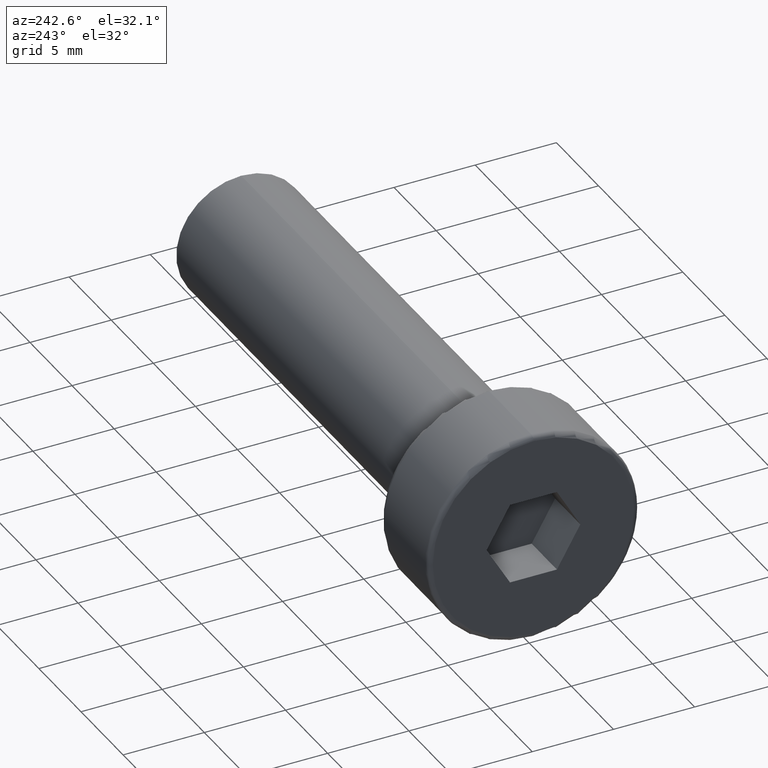
[diagram: clean part render]
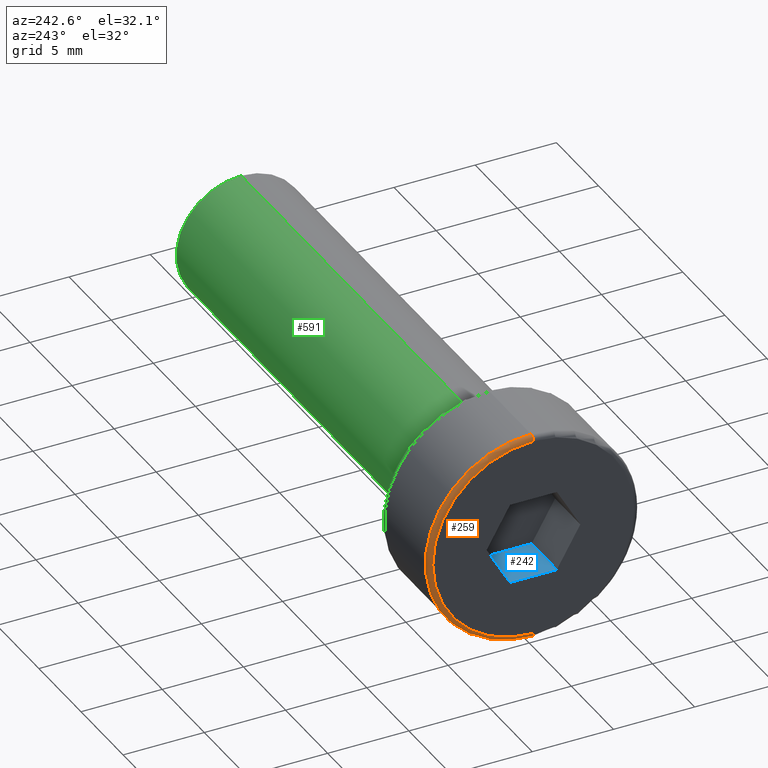
[diagram: same view with three faces highlighted in distinct colors, each labeled with its STEP entity id]
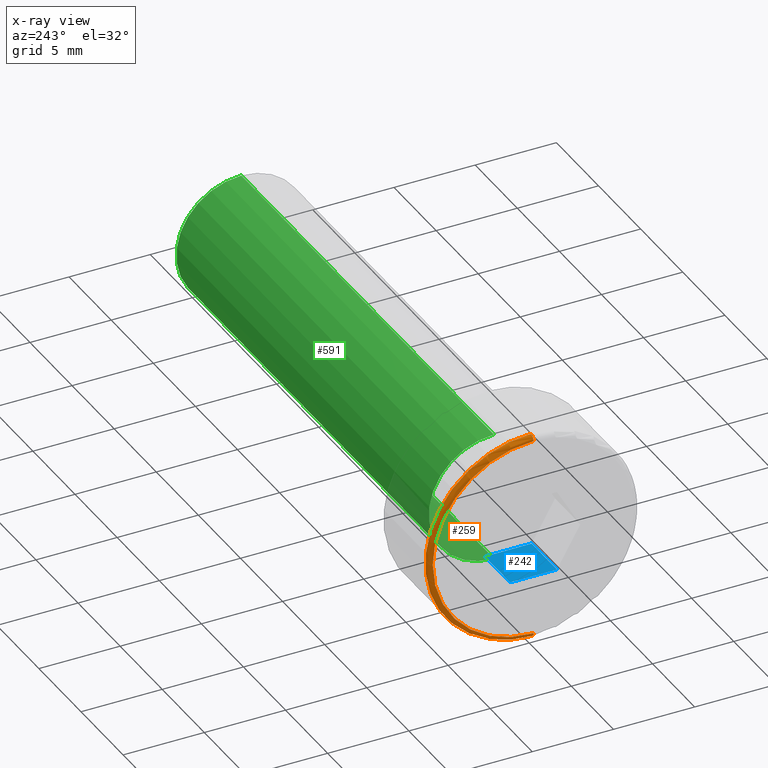
[diagram: x-ray of the same camera — body ghosted, the three highlighted faces saturated]
A machine part, auxiliary view with three faces highlighted in distinct colors.
The next image is the same camera in x-ray (body ghosted, the three faces saturated) — at least one of them is partly hidden behind the body in this view.
Their STEP definitions:

[orange] entity #259 — the highlighted toroidal blend (fillet) surface has major radius 6.2 mm and minor (blend) radius 0.3 mm.
#21 = CIRCLE ( 'NONE', #448, 0.2999999999999999300 ) ;
#34 = CIRCLE ( 'NONE', #432, 6.499999999999999100 ) ;
#40 = VERTEX_POINT ( 'NONE', #231 ) ;
#44 = AXIS2_PLACEMENT_3D ( 'NONE', #458, #88, #518 ) ;
#64 = CIRCLE ( 'NONE', #521, 0.2999999999999999300 ) ;
#85 = DIRECTION ( 'NONE',  ( 0.0000000000000000000, 1.000000000000000000, -1.224646799147353200E-016 ) ) ;
#87 = CIRCLE ( 'NONE', #44, 6.199999999999999300 ) ;
#88 = DIRECTION ( 'NONE',  ( -1.000000000000000000, -0.0000000000000000000, -0.0000000000000000000 ) ) ;
#97 = VERTEX_POINT ( 'NONE', #227 ) ;
#150 = EDGE_CURVE ( 'NONE', #97, #40, #64, .T. ) ;
#220 = EDGE_CURVE ( 'NONE', #97, #243, #87, .T. ) ;
#225 = DIRECTION ( 'NONE',  ( 1.000000000000000000, 0.0000000000000000000, 0.0000000000000000000 ) ) ;
#227 = CARTESIAN_POINT ( 'NONE',  ( -5.500000000000000000, 7.776507174585691200E-016, 6.199999999999999300 ) ) ;
#231 = CARTESIAN_POINT ( 'NONE',  ( -5.200000000000000200, 7.960204194457794500E-016, 6.499999999999999100 ) ) ;
#243 = VERTEX_POINT ( 'NONE', #639 ) ;
#259 = ADVANCED_FACE ( 'NONE', ( #435 ), #745, .T. ) ;
#267 = CARTESIAN_POINT ( 'NONE',  ( -5.200000000000000200, 0.0000000000000000000, 0.0000000000000000000 ) ) ;
#315 = ORIENTED_EDGE ( 'NONE', *, *, #220, .F. ) ;
#357 = DIRECTION ( 'NONE',  ( 0.0000000000000000000, 0.0000000000000000000, -1.000000000000000000 ) ) ;
#414 = ORIENTED_EDGE ( 'NONE', *, *, #558, .F. ) ;
#431 = ORIENTED_EDGE ( 'NONE', *, *, #150, .T. ) ;
#432 = AXIS2_PLACEMENT_3D ( 'NONE', #267, #522, #516 ) ;
#435 = FACE_OUTER_BOUND ( 'NONE', #482, .T. ) ;
#448 = AXIS2_PLACEMENT_3D ( 'NONE', #742, #563, #357 ) ;
#454 = DIRECTION ( 'NONE',  ( 0.0000000000000000000, 1.224646799147353200E-016, 1.000000000000000000 ) ) ;
#458 = CARTESIAN_POINT ( 'NONE',  ( -5.500000000000000000, 0.0000000000000000000, 0.0000000000000000000 ) ) ;
#482 = EDGE_LOOP ( 'NONE', ( #315, #431, #705, #414 ) ) ;
#504 = AXIS2_PLACEMENT_3D ( 'NONE', #582, #225, #661 ) ;
#514 = CARTESIAN_POINT ( 'NONE',  ( -5.200000000000000200, 7.592810154713588800E-016, 6.199999999999999300 ) ) ;
#516 = DIRECTION ( 'NONE',  ( 0.0000000000000000000, 0.0000000000000000000, -1.000000000000000000 ) ) ;
#518 = DIRECTION ( 'NONE',  ( 0.0000000000000000000, 0.0000000000000000000, -1.000000000000000000 ) ) ;
#521 = AXIS2_PLACEMENT_3D ( 'NONE', #514, #85, #454 ) ;
#522 = DIRECTION ( 'NONE',  ( 1.000000000000000000, 0.0000000000000000000, 0.0000000000000000000 ) ) ;
#558 = EDGE_CURVE ( 'NONE', #243, #709, #21, .T. ) ;
#563 = DIRECTION ( 'NONE',  ( 0.0000000000000000000, -1.000000000000000000, 0.0000000000000000000 ) ) ;
#582 = CARTESIAN_POINT ( 'NONE',  ( -5.200000000000000200, 0.0000000000000000000, 0.0000000000000000000 ) ) ;
#639 = CARTESIAN_POINT ( 'NONE',  ( -5.500000000000000000, 0.0000000000000000000, -6.199999999999999300 ) ) ;
#661 = DIRECTION ( 'NONE',  ( 0.0000000000000000000, 0.0000000000000000000, -1.000000000000000000 ) ) ;
#681 = CARTESIAN_POINT ( 'NONE',  ( -5.200000000000000200, 0.0000000000000000000, -6.499999999999999100 ) ) ;
#705 = ORIENTED_EDGE ( 'NONE', *, *, #759, .F. ) ;
#709 = VERTEX_POINT ( 'NONE', #681 ) ;
#742 = CARTESIAN_POINT ( 'NONE',  ( -5.200000000000000200, 0.0000000000000000000, -6.199999999999999300 ) ) ;
#745 = TOROIDAL_SURFACE ( 'NONE', #504, 6.199999999999999300, 0.2999999999999999900 ) ;
#759 = EDGE_CURVE ( 'NONE', #709, #40, #34, .T. ) ;

[blue] entity #242 — the highlighted planar face has unit normal (0, 0, -1).
#6 = LINE ( 'NONE', #757, #656 ) ;
#10 = DIRECTION ( 'NONE',  ( 0.0000000000000000000, 0.0000000000000000000, -1.000000000000000000 ) ) ;
#13 = DIRECTION ( 'NONE',  ( -1.000000000000000000, -0.0000000000000000000, -0.0000000000000000000 ) ) ;
#62 = FACE_OUTER_BOUND ( 'NONE', #778, .T. ) ;
#91 = VERTEX_POINT ( 'NONE', #413 ) ;
#152 = LINE ( 'NONE', #725, #461 ) ;
#242 = ADVANCED_FACE ( 'NONE', ( #62 ), #398, .F. ) ;
#292 = AXIS2_PLACEMENT_3D ( 'NONE', #330, #10, #460 ) ;
#299 = ORIENTED_EDGE ( 'NONE', *, *, #405, .F. ) ;
#300 = CARTESIAN_POINT ( 'NONE',  ( -5.500000000000000000, -1.443375672974072800, -2.500000000000013300 ) ) ;
#308 = EDGE_CURVE ( 'NONE', #733, #535, #517, .T. ) ;
#330 = CARTESIAN_POINT ( 'NONE',  ( -2.499999999999999600, -1.443375672974072800, -2.500000000000013300 ) ) ;
#331 = CARTESIAN_POINT ( 'NONE',  ( -5.500000000000000000, 1.443375672974072300, -2.500000000000013300 ) ) ;
#349 = VECTOR ( 'NONE', #540, 1000.000000000000000 ) ;
#350 = EDGE_CURVE ( 'NONE', #91, #750, #806, .T. ) ;
#369 = ORIENTED_EDGE ( 'NONE', *, *, #308, .T. ) ;
#398 = PLANE ( 'NONE',  #292 ) ;
#405 = EDGE_CURVE ( 'NONE', #750, #535, #152, .T. ) ;
#413 = CARTESIAN_POINT ( 'NONE',  ( -2.499999999999999600, 1.443375672974072300, -2.500000000000013300 ) ) ;
#460 = DIRECTION ( 'NONE',  ( -1.000000000000000000, 0.0000000000000000000, -0.0000000000000000000 ) ) ;
#461 = VECTOR ( 'NONE', #675, 1000.000000000000000 ) ;
#473 = ORIENTED_EDGE ( 'NONE', *, *, #782, .T. ) ;
#487 = DIRECTION ( 'NONE',  ( -0.0000000000000000000, -1.000000000000000000, -0.0000000000000000000 ) ) ;
#517 = LINE ( 'NONE', #595, #349 ) ;
#526 = ORIENTED_EDGE ( 'NONE', *, *, #350, .F. ) ;
#535 = VERTEX_POINT ( 'NONE', #300 ) ;
#540 = DIRECTION ( 'NONE',  ( -0.0000000000000000000, -1.000000000000000000, -0.0000000000000000000 ) ) ;
#556 = CARTESIAN_POINT ( 'NONE',  ( -2.499999999999999600, -1.443375672974072800, -2.500000000000013300 ) ) ;
#595 = CARTESIAN_POINT ( 'NONE',  ( -5.500000000000000000, -1.443375672974072800, -2.500000000000013300 ) ) ;
#607 = CARTESIAN_POINT ( 'NONE',  ( -2.499999999999999600, -1.443375672974072800, -2.500000000000013300 ) ) ;
#640 = VECTOR ( 'NONE', #487, 1000.000000000000000 ) ;
#656 = VECTOR ( 'NONE', #13, 1000.000000000000000 ) ;
#675 = DIRECTION ( 'NONE',  ( -1.000000000000000000, -0.0000000000000000000, -0.0000000000000000000 ) ) ;
#725 = CARTESIAN_POINT ( 'NONE',  ( -2.499999999999999600, -1.443375672974072800, -2.500000000000013300 ) ) ;
#733 = VERTEX_POINT ( 'NONE', #331 ) ;
#750 = VERTEX_POINT ( 'NONE', #556 ) ;
#757 = CARTESIAN_POINT ( 'NONE',  ( -2.499999999999999600, 1.443375672974072300, -2.500000000000013300 ) ) ;
#778 = EDGE_LOOP ( 'NONE', ( #369, #299, #526, #473 ) ) ;
#782 = EDGE_CURVE ( 'NONE', #91, #733, #6, .T. ) ;
#806 = LINE ( 'NONE', #607, #640 ) ;

[green] entity #591 — the highlighted cylindrical surface (partial cylindrical patch) has radius 4 mm, axis along (-1, -0, -0).
#8 = EDGE_CURVE ( 'NONE', #211, #224, #171, .T. ) ;
#9 = DIRECTION ( 'NONE',  ( 0.0000000000000000000, 0.0000000000000000000, -1.000000000000000000 ) ) ;
#49 = VECTOR ( 'NONE', #491, 1000.000000000000000 ) ;
#112 = LINE ( 'NONE', #387, #192 ) ;
#132 = EDGE_CURVE ( 'NONE', #441, #649, #112, .T. ) ;
#138 = ORIENTED_EDGE ( 'NONE', *, *, #8, .T. ) ;
#171 = LINE ( 'NONE', #602, #49 ) ;
#182 = CARTESIAN_POINT ( 'NONE',  ( 30.00000000000000000, 0.0000000000000000000, 0.0000000000000000000 ) ) ;
#183 = ORIENTED_EDGE ( 'NONE', *, *, #132, .F. ) ;
#192 = VECTOR ( 'NONE', #758, 1000.000000000000000 ) ;
#211 = VERTEX_POINT ( 'NONE', #756 ) ;
#224 = VERTEX_POINT ( 'NONE', #327 ) ;
#264 = AXIS2_PLACEMENT_3D ( 'NONE', #747, #677, #9 ) ;
#327 = CARTESIAN_POINT ( 'NONE',  ( -0.8000000000000000400, 4.898587196589412800E-016, -4.000000000000000000 ) ) ;
#378 = CARTESIAN_POINT ( 'NONE',  ( 29.19999999999999900, 0.0000000000000000000, 0.0000000000000000000 ) ) ;
#387 = CARTESIAN_POINT ( 'NONE',  ( 30.00000000000000000, 0.0000000000000000000, 4.000000000000000000 ) ) ;
#389 = CIRCLE ( 'NONE', #264, 4.000000000000000000 ) ;
#424 = EDGE_LOOP ( 'NONE', ( #472, #138, #707, #183 ) ) ;
#428 = DIRECTION ( 'NONE',  ( -1.000000000000000000, -0.0000000000000000000, -0.0000000000000000000 ) ) ;
#430 = DIRECTION ( 'NONE',  ( 0.0000000000000000000, 0.0000000000000000000, 1.000000000000000000 ) ) ;
#441 = VERTEX_POINT ( 'NONE', #502 ) ;
#472 = ORIENTED_EDGE ( 'NONE', *, *, #811, .T. ) ;
#477 = AXIS2_PLACEMENT_3D ( 'NONE', #378, #692, #754 ) ;
#491 = DIRECTION ( 'NONE',  ( -1.000000000000000000, -0.0000000000000000000, -0.0000000000000000000 ) ) ;
#502 = CARTESIAN_POINT ( 'NONE',  ( 29.19999999999999900, 0.0000000000000000000, 4.000000000000000000 ) ) ;
#515 = CIRCLE ( 'NONE', #477, 4.000000000000000000 ) ;
#591 = ADVANCED_FACE ( 'NONE', ( #647 ), #795, .T. ) ;
#602 = CARTESIAN_POINT ( 'NONE',  ( 30.00000000000000000, 4.898587196589412800E-016, -4.000000000000000000 ) ) ;
#610 = AXIS2_PLACEMENT_3D ( 'NONE', #182, #428, #430 ) ;
#647 = FACE_OUTER_BOUND ( 'NONE', #424, .T. ) ;
#649 = VERTEX_POINT ( 'NONE', #768 ) ;
#677 = DIRECTION ( 'NONE',  ( 1.000000000000000000, 0.0000000000000000000, 0.0000000000000000000 ) ) ;
#692 = DIRECTION ( 'NONE',  ( -1.000000000000000000, 0.0000000000000000000, 0.0000000000000000000 ) ) ;
#702 = EDGE_CURVE ( 'NONE', #224, #649, #389, .T. ) ;
#707 = ORIENTED_EDGE ( 'NONE', *, *, #702, .T. ) ;
#747 = CARTESIAN_POINT ( 'NONE',  ( -0.8000000000000000400, 0.0000000000000000000, 0.0000000000000000000 ) ) ;
#754 = DIRECTION ( 'NONE',  ( 0.0000000000000000000, 0.0000000000000000000, -1.000000000000000000 ) ) ;
#756 = CARTESIAN_POINT ( 'NONE',  ( 29.19999999999999900, 4.898587196589411800E-016, -4.000000000000000000 ) ) ;
#758 = DIRECTION ( 'NONE',  ( -1.000000000000000000, -0.0000000000000000000, -0.0000000000000000000 ) ) ;
#768 = CARTESIAN_POINT ( 'NONE',  ( -0.8000000000000000400, 0.0000000000000000000, 4.000000000000000000 ) ) ;
#795 = CYLINDRICAL_SURFACE ( 'NONE', #610, 4.000000000000000000 ) ;
#811 = EDGE_CURVE ( 'NONE', #441, #211, #515, .T. ) ;